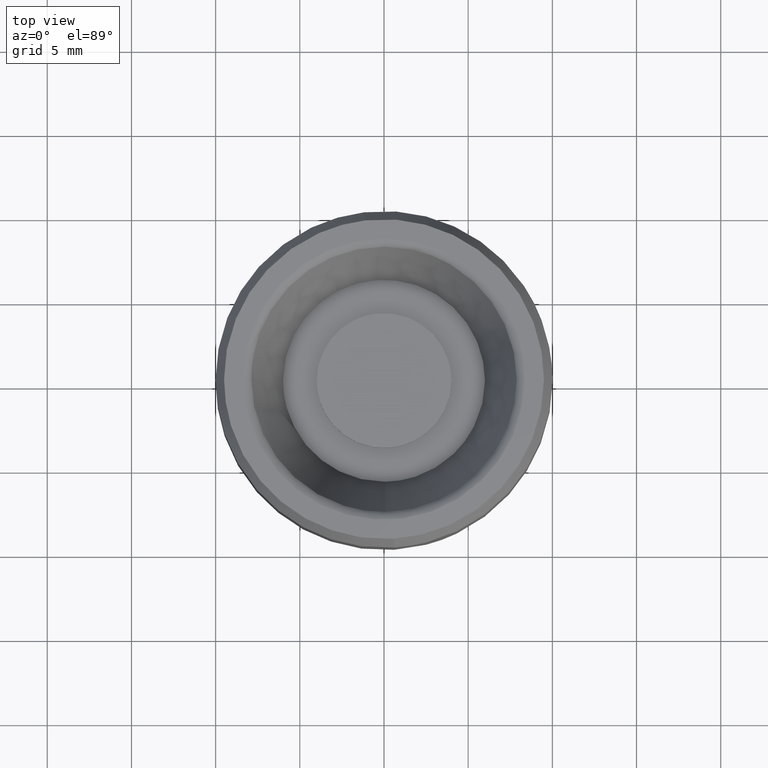
[diagram: clean part render]
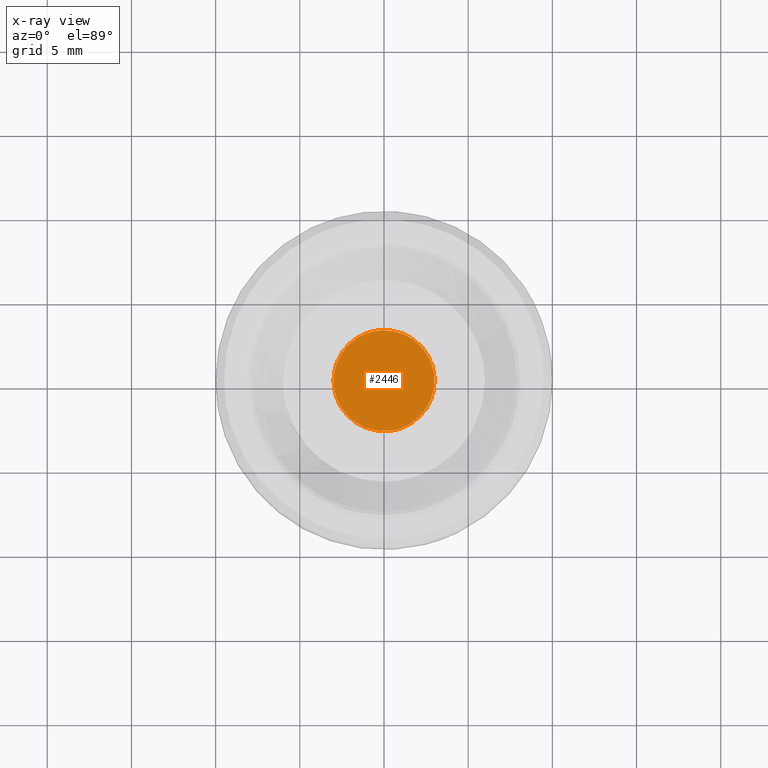
[diagram: x-ray — body ghosted, one internal face saturated and labeled with its STEP entity id]
A machine part, top view, then the same camera in x-ray: the body is ghosted and one INTERNAL B-rep face — a face not visible from any outside direction — is saturated and labeled: STEP entity #2446.
In plain terms, the highlighted face is a freeform B-spline surface patch.
Its self-contained STEP definition (entity closure, byte-faithful):
#1069=CARTESIAN_POINT('',(0.354102058458997,-2.979028655819658,9.500000000000000));
#1070=VERTEX_POINT('',#1069);
#1071=CARTESIAN_POINT('',(-3.0,0.0,9.500000000000000));
#1072=VERTEX_POINT('',#1071);
#1073=CARTESIAN_POINT('',(0.354102058458997,-2.979028655819657,9.500000000000000));
#1074=CARTESIAN_POINT('',(0.177671706620215,-3.000000000000001,9.500000000000000));
#1075=CARTESIAN_POINT('',(0.0,-3.0,9.500000000000000));
#1076=CARTESIAN_POINT('',(-3.0,-3.0,9.500000000000000));
#1077=CARTESIAN_POINT('',(-3.0,0.0,9.500000000000000));
#1085=(BOUNDED_CURVE()B_SPLINE_CURVE(2,(#1073,#1074,#1075,#1076,#1077),.UNSPECIFIED.,.F.,.U.)B_SPLINE_CURVE_WITH_KNOTS((3,2,3),(0.229562546756640,0.250000000000000,0.500000000000000),.UNSPECIFIED.)CURVE()GEOMETRIC_REPRESENTATION_ITEM()RATIONAL_B_SPLINE_CURVE((0.956026897743285,0.976056034140811,1.0,0.707106781186548,1.0))REPRESENTATION_ITEM(''));
#1086=EDGE_CURVE('',#1070,#1072,#1085,.T.);
#1127=CARTESIAN_POINT('',(-0.183145618623102,2.994404395264467,9.500000000000000));
#1128=VERTEX_POINT('',#1127);
#1134=CARTESIAN_POINT('',(-3.0,0.0,9.500000000000000));
#1135=CARTESIAN_POINT('',(-3.000000000000000,2.822118200682099,9.500000000000000));
#1136=CARTESIAN_POINT('',(-0.183145618623102,2.994404395264467,9.500000000000000));
#1144=(BOUNDED_CURVE()B_SPLINE_CURVE(2,(#1134,#1135,#1136),.UNSPECIFIED.,.F.,.U.)B_SPLINE_CURVE_WITH_KNOTS((3,3),(0.500000000000000,0.739332962239833),.UNSPECIFIED.)CURVE()GEOMETRIC_REPRESENTATION_ITEM()RATIONAL_B_SPLINE_CURVE((1.0,0.719603993285667,0.976072041668626))REPRESENTATION_ITEM(''));
#1145=EDGE_CURVE('',#1072,#1128,#1144,.T.);
#1168=CARTESIAN_POINT('',(3.0,0.0,9.500000000000000));
#1169=VERTEX_POINT('',#1168);
#1170=CARTESIAN_POINT('',(3.0,0.0,9.500000000000000));
#1171=CARTESIAN_POINT('',(2.999999999999999,-2.664524740708624,9.500000000000000));
#1172=CARTESIAN_POINT('',(0.354102058458997,-2.979028655819657,9.500000000000000));
#1180=(BOUNDED_CURVE()B_SPLINE_CURVE(2,(#1170,#1171,#1172),.UNSPECIFIED.,.F.,.U.)B_SPLINE_CURVE_WITH_KNOTS((3,3),(0.0,0.229562546756640),.UNSPECIFIED.)CURVE()GEOMETRIC_REPRESENTATION_ITEM()RATIONAL_B_SPLINE_CURVE((1.0,0.731050747045736,0.956026897743285))REPRESENTATION_ITEM(''));
#1181=EDGE_CURVE('',#1169,#1070,#1180,.T.);
#1183=CARTESIAN_POINT('',(-0.183145618623102,2.994404395264467,9.500000000000000));
#1184=CARTESIAN_POINT('',(-0.091658289914349,3.000000000000000,9.500000000000000));
#1185=CARTESIAN_POINT('',(0.0,3.0,9.500000000000000));
#1186=CARTESIAN_POINT('',(3.0,3.0,9.500000000000000));
#1187=CARTESIAN_POINT('',(3.0,0.0,9.500000000000000));
#1195=(BOUNDED_CURVE()B_SPLINE_CURVE(2,(#1183,#1184,#1185,#1186,#1187),.UNSPECIFIED.,.F.,.U.)B_SPLINE_CURVE_WITH_KNOTS((3,2,3),(0.739332962239833,0.750000000000000,1.0),.UNSPECIFIED.)CURVE()GEOMETRIC_REPRESENTATION_ITEM()RATIONAL_B_SPLINE_CURVE((0.976072041668625,0.987502787900880,1.0,0.707106781186548,1.0))REPRESENTATION_ITEM(''));
#1196=EDGE_CURVE('',#1128,#1169,#1195,.T.);
#2435=CARTESIAN_POINT('',(-3.299699988370835,-3.299645593606483,9.500000000000000));
#2436=CARTESIAN_POINT('',(3.299700149303376,-3.299645593606483,9.500000000000000));
#2437=CARTESIAN_POINT('',(-3.299699988370835,3.299626979075918,9.500000000000000));
#2438=CARTESIAN_POINT('',(3.299700149303376,3.299626979075918,9.500000000000000));
#2439=B_SPLINE_SURFACE_WITH_KNOTS('',1,1,((#2435,#2437),(#2436,#2438)),.UNSPECIFIED.,.F.,.F.,.U.,(2,2),(2,2),(0.0,6.599400137674212),(0.0,6.599272572682400),.UNSPECIFIED.);
#2440=ORIENTED_EDGE('',*,*,#1181,.T.);
#2441=ORIENTED_EDGE('',*,*,#1086,.T.);
#2442=ORIENTED_EDGE('',*,*,#1145,.T.);
#2443=ORIENTED_EDGE('',*,*,#1196,.T.);
#2444=EDGE_LOOP('',(#2440,#2441,#2442,#2443));
#2445=FACE_OUTER_BOUND('',#2444,.T.);
#2446=ADVANCED_FACE('',(#2445),#2439,.F.);